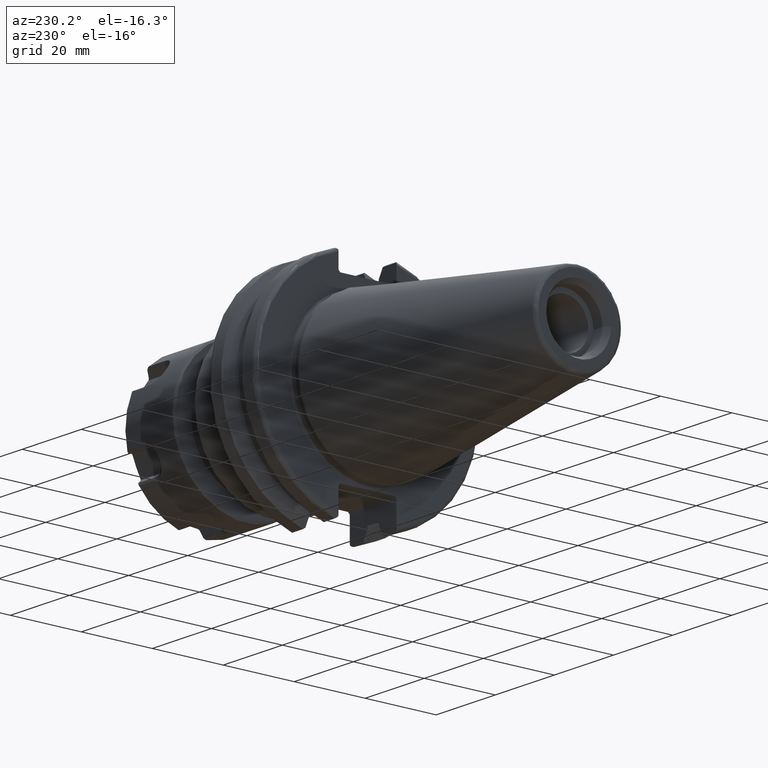
[diagram: clean part render]
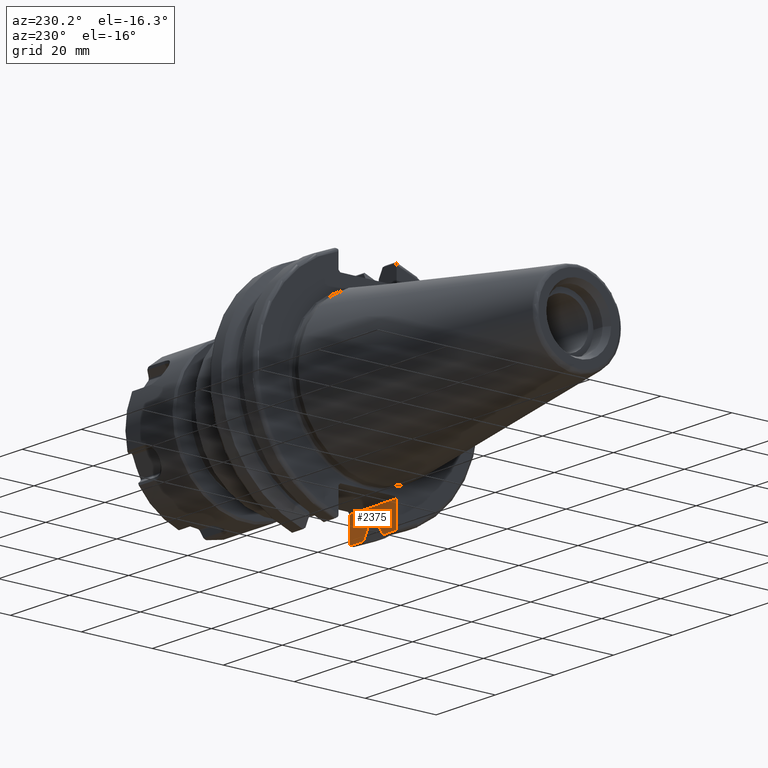
[diagram: same view with one face highlighted and labeled with its STEP entity id]
A machine part, auxiliary view. The second image highlights one B-rep face of the part: STEP entity #2375.
In plain terms, the highlighted planar face has unit normal (0, -1, 0).
Its self-contained STEP definition (entity closure, byte-faithful):
#120=(
BOUNDED_CURVE()
B_SPLINE_CURVE(2,(#3697,#3698,#3699),.UNSPECIFIED.,.F.,.F.)
B_SPLINE_CURVE_WITH_KNOTS((3,3),(0.,0.276549142796619),.UNSPECIFIED.)
CURVE()
GEOMETRIC_REPRESENTATION_ITEM()
RATIONAL_B_SPLINE_CURVE((1.,1.00095203903827,1.00031614444983))
REPRESENTATION_ITEM('')
);
#121=(
BOUNDED_CURVE()
B_SPLINE_CURVE(2,(#3707,#3708,#3709),.UNSPECIFIED.,.F.,.F.)
B_SPLINE_CURVE_WITH_KNOTS((3,3),(0.0550586467396013,0.331607789535851),
 .UNSPECIFIED.)
CURVE()
GEOMETRIC_REPRESENTATION_ITEM()
RATIONAL_B_SPLINE_CURVE((1.00031614445107,1.00095203904202,1.))
REPRESENTATION_ITEM('')
);
#136=B_SPLINE_CURVE_WITH_KNOTS('',3,(#3635,#3636,#3637,#3638,#3639,#3640),
 .UNSPECIFIED.,.F.,.F.,(4,2,4),(0.0977383630915687,0.112311108149119,0.150804350305566),
 .UNSPECIFIED.);
#141=B_SPLINE_CURVE_WITH_KNOTS('',3,(#3712,#3713,#3714,#3715,#3716,#3717),
 .UNSPECIFIED.,.F.,.F.,(4,2,4),(0.452741154494498,0.491581665024872,0.505824174364157),
 .UNSPECIFIED.);
#242=PLANE('',#2614);
#350=FACE_OUTER_BOUND('',#496,.T.);
#496=EDGE_LOOP('',(#1745,#1746,#1747,#1748,#1749,#1750,#1751,#1752,#1753,
#1754,#1755,#1756));
#643=LINE('',#3537,#806);
#658=LINE('',#3627,#821);
#668=LINE('',#3695,#831);
#669=LINE('',#3701,#832);
#670=LINE('',#3703,#833);
#671=LINE('',#3705,#834);
#672=LINE('',#3711,#835);
#673=LINE('',#3718,#836);
#806=VECTOR('',#2893,10.);
#821=VECTOR('',#2926,10.);
#831=VECTOR('',#2944,10.);
#832=VECTOR('',#2945,10.);
#833=VECTOR('',#2946,10.);
#834=VECTOR('',#2947,10.);
#835=VECTOR('',#2948,10.);
#836=VECTOR('',#2949,10.);
#1072=VERTEX_POINT('',#3515);
#1082=VERTEX_POINT('',#3535);
#1104=VERTEX_POINT('',#3624);
#1105=VERTEX_POINT('',#3626);
#1108=VERTEX_POINT('',#3634);
#1119=VERTEX_POINT('',#3694);
#1120=VERTEX_POINT('',#3696);
#1121=VERTEX_POINT('',#3700);
#1122=VERTEX_POINT('',#3702);
#1123=VERTEX_POINT('',#3704);
#1124=VERTEX_POINT('',#3706);
#1125=VERTEX_POINT('',#3710);
#1315=EDGE_CURVE('',#1082,#1072,#643,.T.);
#1342=EDGE_CURVE('',#1104,#1105,#658,.T.);
#1346=EDGE_CURVE('',#1108,#1104,#136,.T.);
#1360=EDGE_CURVE('',#1119,#1108,#668,.T.);
#1361=EDGE_CURVE('',#1120,#1119,#120,.T.);
#1362=EDGE_CURVE('',#1121,#1120,#669,.T.);
#1363=EDGE_CURVE('',#1122,#1121,#670,.T.);
#1364=EDGE_CURVE('',#1123,#1122,#671,.T.);
#1365=EDGE_CURVE('',#1124,#1123,#121,.T.);
#1366=EDGE_CURVE('',#1125,#1124,#672,.T.);
#1367=EDGE_CURVE('',#1072,#1125,#141,.T.);
#1368=EDGE_CURVE('',#1105,#1082,#673,.T.);
#1745=ORIENTED_EDGE('',*,*,#1346,.F.);
#1746=ORIENTED_EDGE('',*,*,#1360,.F.);
#1747=ORIENTED_EDGE('',*,*,#1361,.F.);
#1748=ORIENTED_EDGE('',*,*,#1362,.F.);
#1749=ORIENTED_EDGE('',*,*,#1363,.F.);
#1750=ORIENTED_EDGE('',*,*,#1364,.F.);
#1751=ORIENTED_EDGE('',*,*,#1365,.F.);
#1752=ORIENTED_EDGE('',*,*,#1366,.F.);
#1753=ORIENTED_EDGE('',*,*,#1367,.F.);
#1754=ORIENTED_EDGE('',*,*,#1315,.F.);
#1755=ORIENTED_EDGE('',*,*,#1368,.F.);
#1756=ORIENTED_EDGE('',*,*,#1342,.F.);
#2375=ADVANCED_FACE('',(#350),#242,.F.);
#2614=AXIS2_PLACEMENT_3D('',#3693,#2942,#2943);
#2893=DIRECTION('',(0.,0.,-1.));
#2926=DIRECTION('',(0.,0.,1.));
#2942=DIRECTION('center_axis',(0.,-1.,0.));
#2943=DIRECTION('ref_axis',(-1.,0.,0.));
#2944=DIRECTION('',(1.,0.,0.));
#2945=DIRECTION('',(0.,0.,-1.));
#2946=DIRECTION('',(1.,0.,0.));
#2947=DIRECTION('',(0.,0.,1.));
#2948=DIRECTION('',(1.,0.,0.));
#2949=DIRECTION('',(-1.,0.,0.));
#3515=CARTESIAN_POINT('',(3.175,-8.19,-29.6392712461019));
#3535=CARTESIAN_POINT('',(3.175,-8.19,-23.1));
#3537=CARTESIAN_POINT('',(3.175,-8.19,-11.3));
#3624=CARTESIAN_POINT('',(19.05,-8.19,-29.6392712461019));
#3626=CARTESIAN_POINT('',(19.05,-8.19,-23.1));
#3627=CARTESIAN_POINT('',(19.05,-8.19,-11.3));
#3634=CARTESIAN_POINT('',(18.9058722749097,-8.19,-30.1755016258903));
#3635=CARTESIAN_POINT('Ctrl Pts',(18.9058722749097,-8.19,-30.1755016258903));
#3636=CARTESIAN_POINT('Ctrl Pts',(18.9324477233044,-8.19,-30.1299319366157));
#3637=CARTESIAN_POINT('Ctrl Pts',(18.9550700364447,-8.19,-30.0829389905409));
#3638=CARTESIAN_POINT('Ctrl Pts',(19.0210043632013,-8.19,-29.9188002007263));
#3639=CARTESIAN_POINT('Ctrl Pts',(19.05,-8.19,-29.76758205329));
#3640=CARTESIAN_POINT('Ctrl Pts',(19.05,-8.19,-29.6392712461019));
#3693=CARTESIAN_POINT('Origin',(20.05,-8.19,-22.6));
#3694=CARTESIAN_POINT('',(14.3744146964874,-8.19,-30.1755016258903));
#3695=CARTESIAN_POINT('',(16.8515833845378,-8.19,-30.1755016258903));
#3696=CARTESIAN_POINT('',(13.042,-8.19,-27.7771386827498));
#3697=CARTESIAN_POINT('Ctrl Pts',(13.042,-8.19,-27.7771386827498));
#3698=CARTESIAN_POINT('Ctrl Pts',(13.6806364384734,-8.19,-28.9303689539657));
#3699=CARTESIAN_POINT('Ctrl Pts',(14.3744146964874,-8.19,-30.1755016258903));
#3700=CARTESIAN_POINT('',(13.042,-8.19,-26.932255754021));
#3701=CARTESIAN_POINT('',(13.042,-8.19,-11.3));
#3702=CARTESIAN_POINT('',(9.212,-8.19,-26.932255754021));
#3703=CARTESIAN_POINT('',(11.127,-8.19,-26.932255754021));
#3704=CARTESIAN_POINT('',(9.212,-8.19,-27.7771386827498));
#3705=CARTESIAN_POINT('',(9.212,-8.19,-11.3));
#3706=CARTESIAN_POINT('',(7.87958530351256,-8.19,-30.1755016258903));
#3707=CARTESIAN_POINT('Ctrl Pts',(7.87958530351256,-8.19,-30.1755016258903));
#3708=CARTESIAN_POINT('Ctrl Pts',(8.57336356151926,-8.19,-28.9303689539789));
#3709=CARTESIAN_POINT('Ctrl Pts',(9.212,-8.19,-27.7771386827498));
#3710=CARTESIAN_POINT('',(3.31912772509028,-8.19,-30.1755016258903));
#3711=CARTESIAN_POINT('',(5.38791661546218,-8.19,-30.1755016258903));
#3712=CARTESIAN_POINT('Ctrl Pts',(3.175,-8.19,-29.6392712461018));
#3713=CARTESIAN_POINT('Ctrl Pts',(3.175,-8.19,-29.7687396145364));
#3714=CARTESIAN_POINT('Ctrl Pts',(3.20451443291695,-8.19,-29.9212724384851));
#3715=CARTESIAN_POINT('Ctrl Pts',(3.27103565282437,-8.19,-30.0852355256475));
#3716=CARTESIAN_POINT('Ctrl Pts',(3.29318362718666,-8.19,-30.131014531546));
#3717=CARTESIAN_POINT('Ctrl Pts',(3.31912772509028,-8.19,-30.1755016258903));
#3718=CARTESIAN_POINT('',(17.87875,-8.19,-23.1));